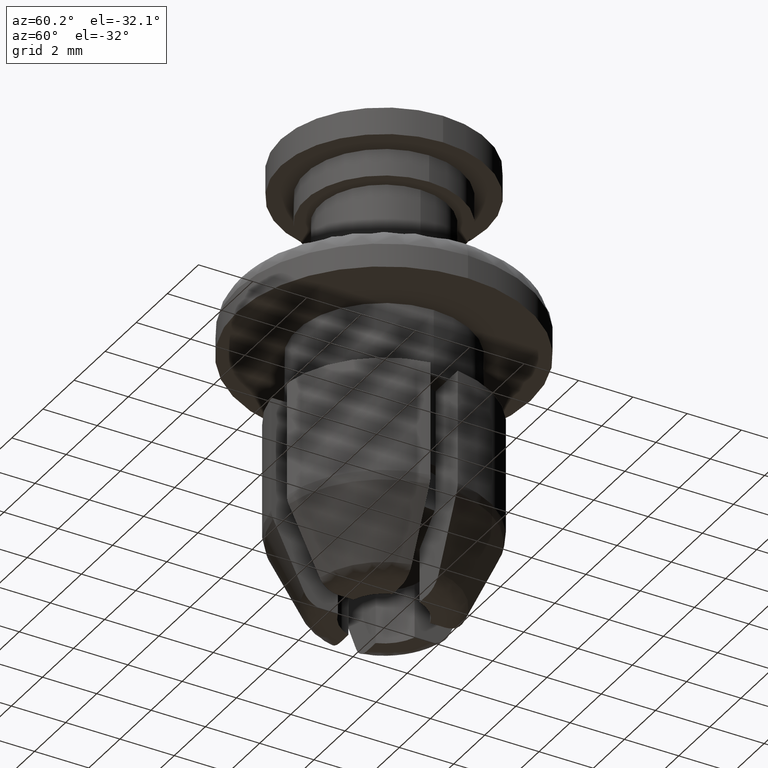
[diagram: clean part render]
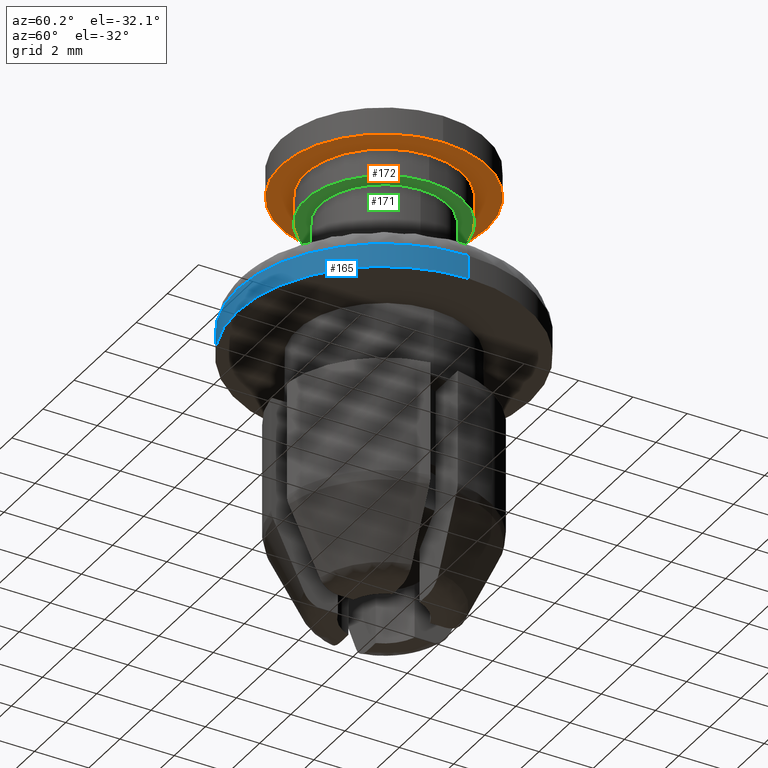
[diagram: same view with three faces highlighted in distinct colors, each labeled with its STEP entity id]
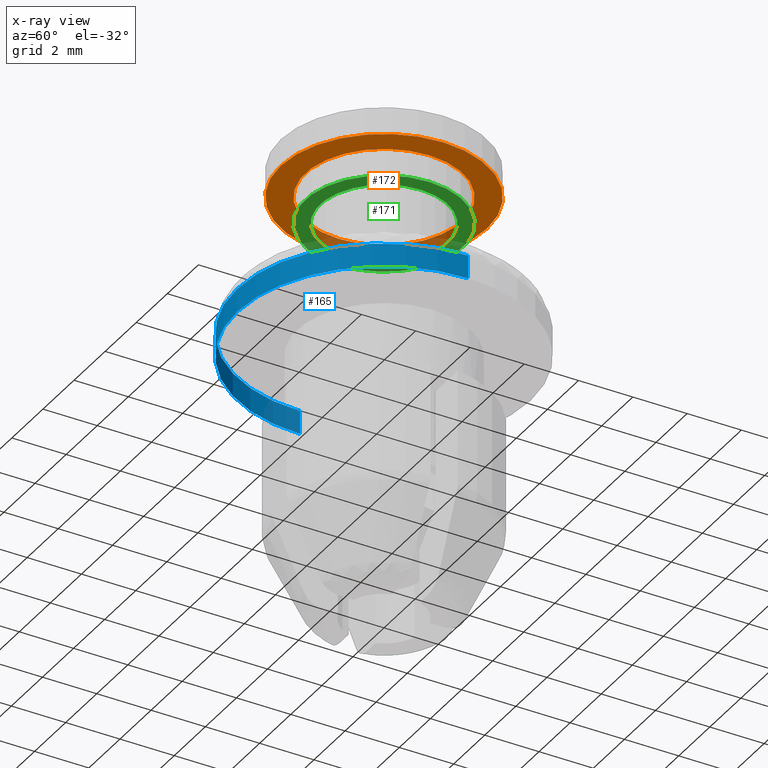
[diagram: x-ray of the same camera — body ghosted, the three highlighted faces saturated]
A machine part, auxiliary view with three faces highlighted in distinct colors.
The next image is the same camera in x-ray (body ghosted, the three faces saturated) — at least one of them is partly hidden behind the body in this view.
Their STEP definitions:

[orange] entity #172 — the highlighted planar face has unit normal (0, 0, -1).
#172=ADVANCED_FACE('',(#797,#798),#796,.T.);
#796=PLANE('',#1429);
#797=FACE_OUTER_BOUND('',#1430,.T.);
#798=FACE_BOUND('',#1431,.T.);
#1426=CARTESIAN_POINT('',(8.74000000000E+00,-7.89815168251E+00,1.00000000000E+00));
#1427=DIRECTION('',(0.00000000000E+00,0.00000000000E+00,-1.00000000000E+00));
#1428=DIRECTION('',(-1.00000000000E+00,0.00000000000E+00,0.00000000000E+00));
#1429=AXIS2_PLACEMENT_3D('',#1426,#1427,#1428);
#1430=EDGE_LOOP('',(#1872,#1873));
#1431=EDGE_LOOP('',(#1874,#1875));
#1872=ORIENTED_EDGE('',*,*,#2110,.T.);
#1873=ORIENTED_EDGE('',*,*,#2111,.T.);
#1874=ORIENTED_EDGE('',*,*,#2112,.F.);
#1875=ORIENTED_EDGE('',*,*,#2113,.F.);
#2110=EDGE_CURVE('',#3234,#3235,#3236,.T.);
#2111=EDGE_CURVE('',#3235,#3234,#3242,.T.);
#2112=EDGE_CURVE('',#3248,#3249,#3250,.T.);
#2113=EDGE_CURVE('',#3249,#3248,#3256,.T.);
#3234=VERTEX_POINT('',#4161);
#3235=VERTEX_POINT('',#4162);
#3236=CIRCLE('',#4166,3.80000000000E+00);
#3242=CIRCLE('',#4170,3.80000000000E+00);
#3248=VERTEX_POINT('',#4171);
#3249=VERTEX_POINT('',#4172);
#3250=CIRCLE('',#4176,2.90000000000E+00);
#3256=CIRCLE('',#4180,2.90000000000E+00);
#4161=CARTESIAN_POINT('',(-3.80000000000E+00,0.00000000000E+00,1.00000000000E+00));
#4162=CARTESIAN_POINT('',(3.80000000000E+00,4.44089209850E-16,1.00000000000E+00));
#4163=CARTESIAN_POINT('',(0.00000000000E+00,0.00000000000E+00,1.00000000000E+00));
#4164=DIRECTION('',(-0.00000000000E+00,0.00000000000E+00,-1.00000000000E+00));
#4165=DIRECTION('',(-1.00000000000E+00,-1.22460635382E-16,0.00000000000E+00));
#4166=AXIS2_PLACEMENT_3D('',#4163,#4164,#4165);
#4167=CARTESIAN_POINT('',(0.00000000000E+00,0.00000000000E+00,1.00000000000E+00));
#4168=DIRECTION('',(-0.00000000000E+00,0.00000000000E+00,-1.00000000000E+00));
#4169=DIRECTION('',(-1.00000000000E+00,-1.22460635382E-16,0.00000000000E+00));
#4170=AXIS2_PLACEMENT_3D('',#4167,#4168,#4169);
#4171=CARTESIAN_POINT('',(2.90000000000E+00,-1.48029736617E-16,1.00000000000E+00));
#4172=CARTESIAN_POINT('',(-2.90000000000E+00,0.00000000000E+00,1.00000000000E+00));
#4173=CARTESIAN_POINT('',(0.00000000000E+00,0.00000000000E+00,1.00000000000E+00));
#4174=DIRECTION('',(-0.00000000000E+00,0.00000000000E+00,-1.00000000000E+00));
#4175=DIRECTION('',(-1.00000000000E+00,-1.22460635382E-16,0.00000000000E+00));
#4176=AXIS2_PLACEMENT_3D('',#4173,#4174,#4175);
#4177=CARTESIAN_POINT('',(0.00000000000E+00,0.00000000000E+00,1.00000000000E+00));
#4178=DIRECTION('',(-0.00000000000E+00,0.00000000000E+00,-1.00000000000E+00));
#4179=DIRECTION('',(-1.00000000000E+00,-1.22460635382E-16,0.00000000000E+00));
#4180=AXIS2_PLACEMENT_3D('',#4177,#4178,#4179);

[blue] entity #165 — the highlighted cylindrical surface (partial cylindrical patch) has radius 5.4 mm, axis along (0, 0, 1).
#165=ADVANCED_FACE('',(#724),#723,.T.);
#723=CYLINDRICAL_SURFACE('',#1391,5.40000000000E+00);
#724=FACE_OUTER_BOUND('',#1392,.T.);
#1388=CARTESIAN_POINT('',(0.00000000000E+00,0.00000000000E+00,0.00000000000E+00));
#1389=DIRECTION('',(-0.00000000000E+00,-0.00000000000E+00,1.00000000000E+00));
#1390=DIRECTION('',(1.00000000000E+00,0.00000000000E+00,0.00000000000E+00));
#1391=AXIS2_PLACEMENT_3D('',#1388,#1389,#1390);
#1392=EDGE_LOOP('',(#1838,#1839,#1840,#1841));
#1838=ORIENTED_EDGE('',*,*,#2026,.F.);
#1839=ORIENTED_EDGE('',*,*,#2092,.T.);
#1840=ORIENTED_EDGE('',*,*,#2088,.T.);
#1841=ORIENTED_EDGE('',*,*,#2093,.F.);
#2026=EDGE_CURVE('',#2684,#2683,#2691,.T.);
#2088=EDGE_CURVE('',#3086,#3087,#3088,.T.);
#2092=EDGE_CURVE('',#2684,#3086,#3112,.T.);
#2093=EDGE_CURVE('',#2683,#3087,#3118,.T.);
#2683=VERTEX_POINT('',#3805);
#2684=VERTEX_POINT('',#3806);
#2691=CIRCLE('',#3814,5.40000000000E+00);
#3086=VERTEX_POINT('',#4067);
#3087=VERTEX_POINT('',#4068);
#3088=CIRCLE('',#4072,5.40000000000E+00);
#3112=(BOUNDED_CURVE() B_SPLINE_CURVE(1,(#4083,#4084),.UNSPECIFIED.,.F.,.F.) B_SPLINE_CURVE_WITH_KNOTS((2,2),(8.33332935974E-02,9.16666633252E-01),.UNSPECIFIED.) CURVE() GEOMETRIC_REPRESENTATION_ITEM() RATIONAL_B_SPLINE_CURVE((1.00000000000E+00,1.00000000000E+00)) REPRESENTATION_ITEM('') );
#3118=(BOUNDED_CURVE() B_SPLINE_CURVE(1,(#4085,#4086),.UNSPECIFIED.,.F.,.F.) B_SPLINE_CURVE_WITH_KNOTS((2,2),(8.33333333333E-02,9.16666666667E-01),.UNSPECIFIED.) CURVE() GEOMETRIC_REPRESENTATION_ITEM() RATIONAL_B_SPLINE_CURVE((7.50000000000E-01,7.50000000000E-01)) REPRESENTATION_ITEM('') );
#3805=CARTESIAN_POINT('',(-5.40000000000E+00,0.00000000000E+00,-2.00000000000E+00));
#3806=CARTESIAN_POINT('',(5.40000000000E+00,2.96059473233E-16,-2.00000000000E+00));
#3811=CARTESIAN_POINT('',(0.00000000000E+00,0.00000000000E+00,-2.00000000000E+00));
#3812=DIRECTION('',(-0.00000000000E+00,0.00000000000E+00,-1.00000000000E+00));
#3813=DIRECTION('',(-1.00000000000E+00,-1.22460635382E-16,0.00000000000E+00));
#3814=AXIS2_PLACEMENT_3D('',#3811,#3812,#3813);
#4067=CARTESIAN_POINT('',(5.40000000000E+00,2.96059473233E-16,-1.13900000000E+00));
#4068=CARTESIAN_POINT('',(-5.40000000000E+00,0.00000000000E+00,-1.13900000000E+00));
#4069=CARTESIAN_POINT('',(0.00000000000E+00,0.00000000000E+00,-1.13900000000E+00));
#4070=DIRECTION('',(-0.00000000000E+00,0.00000000000E+00,-1.00000000000E+00));
#4071=DIRECTION('',(-1.00000000000E+00,-1.22460635382E-16,0.00000000000E+00));
#4072=AXIS2_PLACEMENT_3D('',#4069,#4070,#4071);
#4083=CARTESIAN_POINT('',(5.40000000000E+00,0.00000000000E+00,-2.00000004106E+00));
#4084=CARTESIAN_POINT('',(5.40000000000E+00,0.00000000000E+00,-1.13900003452E+00));
#4085=CARTESIAN_POINT('',(-5.40000000000E+00,-2.96059473233E-16,-2.00000000000E+00));
#4086=CARTESIAN_POINT('',(-5.40000000000E+00,-2.96059473233E-16,-1.13900000000E+00));

[green] entity #171 — the highlighted planar face has unit normal (0, 0, -1).
#171=ADVANCED_FACE('',(#786,#787),#785,.T.);
#785=PLANE('',#1423);
#786=FACE_OUTER_BOUND('',#1424,.T.);
#787=FACE_BOUND('',#1425,.T.);
#1420=CARTESIAN_POINT('',(6.67000000000E+00,-6.02753681034E+00,0.00000000000E+00));
#1421=DIRECTION('',(0.00000000000E+00,0.00000000000E+00,-1.00000000000E+00));
#1422=DIRECTION('',(-1.00000000000E+00,0.00000000000E+00,0.00000000000E+00));
#1423=AXIS2_PLACEMENT_3D('',#1420,#1421,#1422);
#1424=EDGE_LOOP('',(#1868,#1869));
#1425=EDGE_LOOP('',(#1870,#1871));
#1868=ORIENTED_EDGE('',*,*,#2106,.T.);
#1869=ORIENTED_EDGE('',*,*,#2107,.T.);
#1870=ORIENTED_EDGE('',*,*,#2108,.F.);
#1871=ORIENTED_EDGE('',*,*,#2109,.F.);
#2106=EDGE_CURVE('',#3206,#3207,#3208,.T.);
#2107=EDGE_CURVE('',#3207,#3206,#3214,.T.);
#2108=EDGE_CURVE('',#3220,#3221,#3222,.T.);
#2109=EDGE_CURVE('',#3221,#3220,#3228,.T.);
#3206=VERTEX_POINT('',#4141);
#3207=VERTEX_POINT('',#4142);
#3208=CIRCLE('',#4146,2.90000000000E+00);
#3214=CIRCLE('',#4150,2.90000000000E+00);
#3220=VERTEX_POINT('',#4151);
#3221=VERTEX_POINT('',#4152);
#3222=CIRCLE('',#4156,2.35000000000E+00);
#3228=CIRCLE('',#4160,2.35000000000E+00);
#4141=CARTESIAN_POINT('',(-2.90000000000E+00,0.00000000000E+00,0.00000000000E+00));
#4142=CARTESIAN_POINT('',(2.90000000000E+00,-1.48029736617E-16,0.00000000000E+00));
#4143=CARTESIAN_POINT('',(0.00000000000E+00,0.00000000000E+00,0.00000000000E+00));
#4144=DIRECTION('',(-0.00000000000E+00,0.00000000000E+00,-1.00000000000E+00));
#4145=DIRECTION('',(-1.00000000000E+00,-1.22460635382E-16,0.00000000000E+00));
#4146=AXIS2_PLACEMENT_3D('',#4143,#4144,#4145);
#4147=CARTESIAN_POINT('',(0.00000000000E+00,0.00000000000E+00,0.00000000000E+00));
#4148=DIRECTION('',(-0.00000000000E+00,0.00000000000E+00,-1.00000000000E+00));
#4149=DIRECTION('',(-1.00000000000E+00,-1.22460635382E-16,0.00000000000E+00));
#4150=AXIS2_PLACEMENT_3D('',#4147,#4148,#4149);
#4151=CARTESIAN_POINT('',(2.35000000000E+00,0.00000000000E+00,0.00000000000E+00));
#4152=CARTESIAN_POINT('',(-2.35000000000E+00,0.00000000000E+00,0.00000000000E+00));
#4153=CARTESIAN_POINT('',(0.00000000000E+00,0.00000000000E+00,0.00000000000E+00));
#4154=DIRECTION('',(-0.00000000000E+00,0.00000000000E+00,-1.00000000000E+00));
#4155=DIRECTION('',(-1.00000000000E+00,-1.22460635382E-16,0.00000000000E+00));
#4156=AXIS2_PLACEMENT_3D('',#4153,#4154,#4155);
#4157=CARTESIAN_POINT('',(0.00000000000E+00,0.00000000000E+00,0.00000000000E+00));
#4158=DIRECTION('',(-0.00000000000E+00,0.00000000000E+00,-1.00000000000E+00));
#4159=DIRECTION('',(-1.00000000000E+00,-1.22460635382E-16,0.00000000000E+00));
#4160=AXIS2_PLACEMENT_3D('',#4157,#4158,#4159);